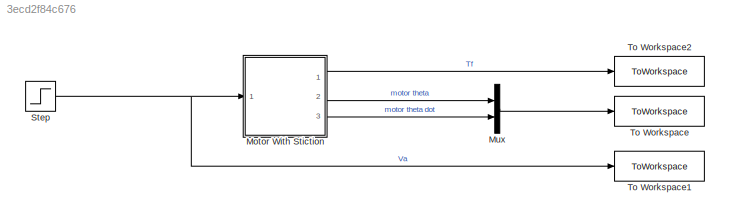
MODEL slx_3ecd2f84c676
KIND model
CONFIG AbsTol = auto
CONFIG EnableMultiTasking = off
CONFIG FixedStep = auto
CONFIG MaxStep = auto
CONFIG MinStep = auto
CONFIG RelTol = 1e-9
CONFIG SampleTimeConstraint = Unconstrained
CONFIG SolverName = VariableStepAuto
CONFIG StartTime = 0.0
CONFIG StopTime = 10.0
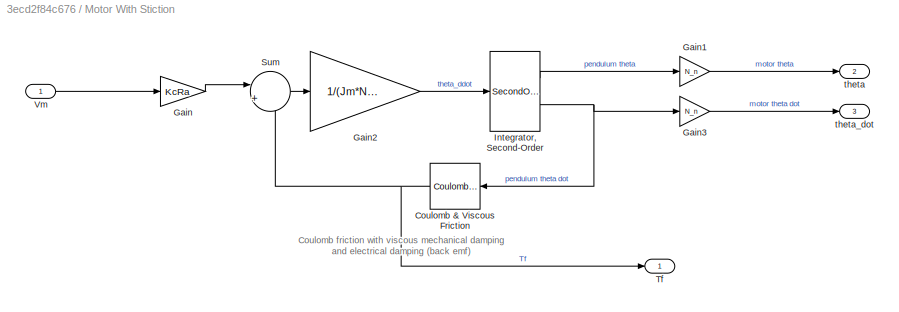
BLOCK [SubSystem]  Motor With Stiction
  NameLocation = top
  Ports = [1, 3]
  RequestExecContextInheritance = off
BLOCK [Reference]  Motor With Stiction/Coulomb & Viscous Friction  REF=simulink/Discontinuities/Coulomb &
Viscous Friction
  NameLocation = top
  Ports = [1, 1]
  SourceBlock = simulink/Discontinuities/Coulomb &\nViscous Friction
  SourceProductBaseCode = SL
  SourceType = Coulombic and Viscous Friction
BLOCK [Gain]  Motor With Stiction/Gain
  Gain = KcRa
BLOCK [Gain]  Motor With Stiction/Gain1
  Gain = N_n
BLOCK [Gain]  Motor With Stiction/Gain2
  Gain = 1/(Jm*N_n)
BLOCK [Gain]  Motor With Stiction/Gain3
  Gain = N_n
BLOCK [SecondOrderIntegrator]  Motor With Stiction/Integrator, Second-Order
  ICDXDT = x0(2)
  ICX = x0(1)
  Ports = [1, 2]
  ZeroCross = off
BLOCK [Sum]  Motor With Stiction/Sum
  Inputs = |+-
  Ports = [2, 1]
BLOCK [Outport]  Motor With Stiction/Tf
BLOCK [Inport]  Motor With Stiction/Vm
BLOCK [Outport]  Motor With Stiction/theta
  Port = 2
BLOCK [Outport]  Motor With Stiction/theta_dot
  Port = 3
BLOCK [Mux] Mux
  DisplayOption = bar
  Inputs = 2
  Ports = [2, 1]
BLOCK [Step] Step
  After = V_step
  SampleTime = 0
  Time = 0
BLOCK [ToWorkspace] To Workspace
  FixptAsFi = on
  MaxDataPoints = inf
  Ports = [1]
  SampleTime = -1
  VariableName = x
BLOCK [ToWorkspace] To Workspace1
  FixptAsFi = on
  MaxDataPoints = inf
  Ports = [1]
  SampleTime = -1
  VariableName = vm
BLOCK [ToWorkspace] To Workspace2
  FixptAsFi = on
  MaxDataPoints = inf
  Ports = [1]
  SampleTime = -1
  VariableName = Tf
ANNOTATION  Motor With Stiction: Coulomb friction with viscous mechanical damping and electrical damping (back emf)
NET  Motor With Stiction/Coulomb & Viscous Friction:1 ->  Motor With Stiction/Sum:2,  Motor With Stiction/Tf:1
LINE  Motor With Stiction/Gain1:1 ->  Motor With Stiction/theta:1
LINE  Motor With Stiction/Gain2:1 ->  Motor With Stiction/Integrator, Second-Order:1
LINE  Motor With Stiction/Gain3:1 ->  Motor With Stiction/theta_dot:1
LINE  Motor With Stiction/Gain:1 ->  Motor With Stiction/Sum:1
LINE  Motor With Stiction/Integrator, Second-Order:1 ->  Motor With Stiction/Gain1:1
NET  Motor With Stiction/Integrator, Second-Order:2 ->  Motor With Stiction/Coulomb & Viscous Friction:1,  Motor With Stiction/Gain3:1
LINE  Motor With Stiction/Sum:1 ->  Motor With Stiction/Gain2:1
LINE  Motor With Stiction/Vm:1 ->  Motor With Stiction/Gain:1
LINE  Motor With Stiction:1 -> To Workspace2:1
LINE  Motor With Stiction:2 -> Mux:1
LINE  Motor With Stiction:3 -> Mux:2
LINE Mux:1 -> To Workspace:1
NET Step:1 ->  Motor With Stiction:1, To Workspace1:1
note: NET lines group one-source signal fan-out (src -> all destinations, sorted); 1:1 wires keep LINE
